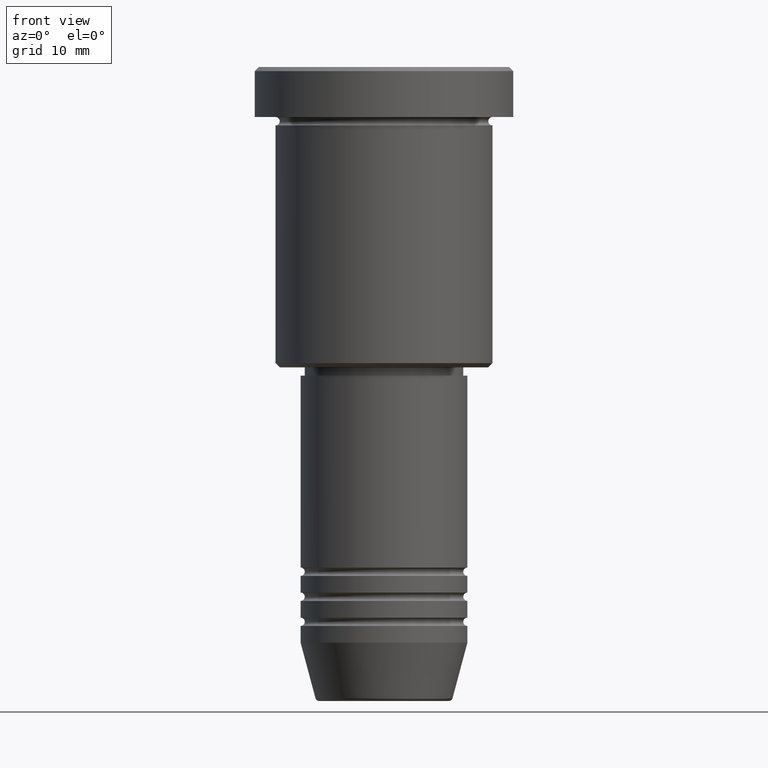
[diagram: clean part render]
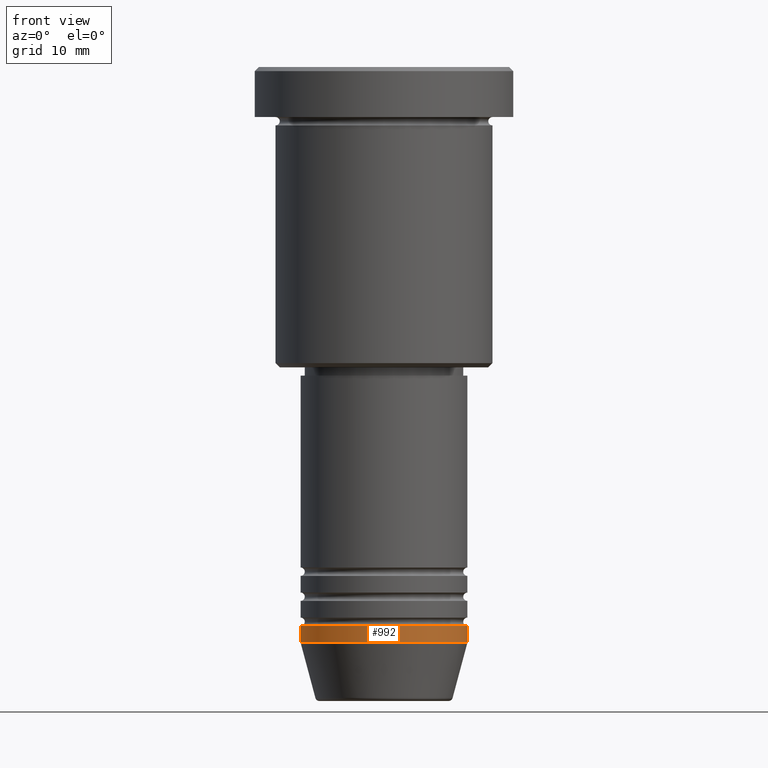
[diagram: same view with one face highlighted and labeled with its STEP entity id]
A machine part, front view. The second image highlights one B-rep face of the part: STEP entity #992.
In plain terms, the highlighted cylindrical surface (partial cylindrical patch) has radius 10 mm, axis along (-0, -0, 1).
Its self-contained STEP definition (entity closure, byte-faithful):
#70 = CARTESIAN_POINT ( 'NONE',  ( -10.00000000000000000, 1.224646799147353256E-15, 0.000000000000000000 ) ) ;
#90 = LINE ( 'NONE', #934, #1053 ) ;
#131 = ORIENTED_EDGE ( 'NONE', *, *, #689, .T. ) ;
#158 = CYLINDRICAL_SURFACE ( 'NONE', #389, 10.00000000000000000 ) ;
#161 = DIRECTION ( 'NONE',  ( -0.000000000000000000, -0.000000000000000000, 1.000000000000000000 ) ) ;
#173 = EDGE_CURVE ( 'NONE', #615, #588, #550, .T. ) ;
#266 = DIRECTION ( 'NONE',  ( 1.000000000000000000, 0.000000000000000000, 0.000000000000000000 ) ) ;
#297 = ORIENTED_EDGE ( 'NONE', *, *, #724, .F. ) ;
#306 = CARTESIAN_POINT ( 'NONE',  ( -10.00000000000000000, 1.224646799147353256E-15, -67.00000000000000000 ) ) ;
#311 = VECTOR ( 'NONE', #161, 1000.000000000000000 ) ;
#360 = CARTESIAN_POINT ( 'NONE',  ( 0.000000000000000000, 0.000000000000000000, -67.00000000000000000 ) ) ;
#389 = AXIS2_PLACEMENT_3D ( 'NONE', #1068, #610, #703 ) ;
#402 = CARTESIAN_POINT ( 'NONE',  ( 0.000000000000000000, 0.000000000000000000, -69.00000000000000000 ) ) ;
#409 = CIRCLE ( 'NONE', #813, 10.00000000000000000 ) ;
#426 = FACE_OUTER_BOUND ( 'NONE', #958, .T. ) ;
#472 = EDGE_CURVE ( 'NONE', #998, #540, #90, .T. ) ;
#478 = DIRECTION ( 'NONE',  ( -0.000000000000000000, -0.000000000000000000, 1.000000000000000000 ) ) ;
#508 = ORIENTED_EDGE ( 'NONE', *, *, #472, .T. ) ;
#540 = VERTEX_POINT ( 'NONE', #1132 ) ;
#550 = LINE ( 'NONE', #70, #311 ) ;
#555 = DIRECTION ( 'NONE',  ( -0.000000000000000000, -0.000000000000000000, 1.000000000000000000 ) ) ;
#588 = VERTEX_POINT ( 'NONE', #306 ) ;
#610 = DIRECTION ( 'NONE',  ( -0.000000000000000000, -0.000000000000000000, 1.000000000000000000 ) ) ;
#615 = VERTEX_POINT ( 'NONE', #781 ) ;
#689 = EDGE_CURVE ( 'NONE', #615, #998, #755, .T. ) ;
#703 = DIRECTION ( 'NONE',  ( 1.000000000000000000, 0.000000000000000000, 0.000000000000000000 ) ) ;
#724 = EDGE_CURVE ( 'NONE', #588, #540, #409, .T. ) ;
#755 = CIRCLE ( 'NONE', #1075, 10.00000000000000000 ) ;
#772 = DIRECTION ( 'NONE',  ( -0.000000000000000000, -0.000000000000000000, 1.000000000000000000 ) ) ;
#781 = CARTESIAN_POINT ( 'NONE',  ( -10.00000000000000000, 1.224646799147353256E-15, -69.00000000000000000 ) ) ;
#805 = CARTESIAN_POINT ( 'NONE',  ( 10.00000000000000000, 0.000000000000000000, -69.00000000000000000 ) ) ;
#813 = AXIS2_PLACEMENT_3D ( 'NONE', #360, #555, #266 ) ;
#874 = ORIENTED_EDGE ( 'NONE', *, *, #173, .F. ) ;
#934 = CARTESIAN_POINT ( 'NONE',  ( 10.00000000000000000, 0.000000000000000000, 0.000000000000000000 ) ) ;
#958 = EDGE_LOOP ( 'NONE', ( #874, #131, #508, #297 ) ) ;
#992 = ADVANCED_FACE ( 'NONE', ( #426 ), #158, .T. ) ;
#998 = VERTEX_POINT ( 'NONE', #805 ) ;
#1004 = DIRECTION ( 'NONE',  ( 1.000000000000000000, 0.000000000000000000, 0.000000000000000000 ) ) ;
#1053 = VECTOR ( 'NONE', #478, 1000.000000000000000 ) ;
#1068 = CARTESIAN_POINT ( 'NONE',  ( 0.000000000000000000, 0.000000000000000000, 0.000000000000000000 ) ) ;
#1075 = AXIS2_PLACEMENT_3D ( 'NONE', #402, #772, #1004 ) ;
#1132 = CARTESIAN_POINT ( 'NONE',  ( 10.00000000000000000, 0.000000000000000000, -67.00000000000000000 ) ) ;